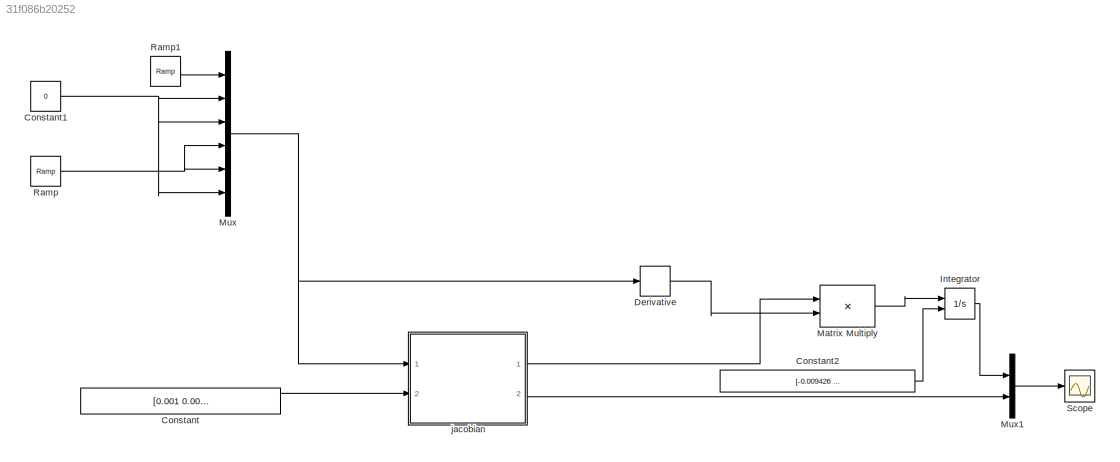
MODEL slx_31f086b20252
KIND model
CONFIG AbsTol = auto
CONFIG EnableMultiTasking = off
CONFIG FixedStep = 0.05
CONFIG MaxStep = auto
CONFIG MinStep = auto
CONFIG RelTol = 1e-3
CONFIG SampleTimeConstraint = Unconstrained
CONFIG Solver = FixedStepAuto
CONFIG SolverName = FixedStepAuto
CONFIG StartTime = 0.0
CONFIG StopTime = 10
BLOCK [Constant] Constant
  Value = [0.001 0.001 0.001 pi/180 pi/180 pi/180]
BLOCK [Constant] Constant1
  Value = 0
BLOCK [Constant] Constant2
  Value = [-0.009426 -0.2116 0.1959]
BLOCK [Derivative] Derivative
BLOCK [Integrator] Integrator
  InitialConditionSource = external
  Ports = [2, 1]
BLOCK [Product] Matrix Multiply
  InputSameDT = off
  Multiplication = Matrix(*)
  OutDataTypeStr = Inherit: Inherit via internal rule
  Ports = [2, 1]
  RndMeth = Floor
  SaturateOnIntegerOverflow = off
BLOCK [Mux] Mux
  DisplayOption = bar
  Inputs = 6
  Ports = [6, 1]
BLOCK [Mux] Mux1
  DisplayOption = bar
  Inputs = 2
  Ports = [2, 1]
BLOCK [Reference] Ramp  REF=simulink/Sources/Ramp
  Ports = [0, 1]
  SourceBlock = simulink/Sources/Ramp
  SourceProductBaseCode = SL
  SourceProductName = Simulink
  SourceType = Ramp
BLOCK [Reference] Ramp1  REF=simulink/Sources/Ramp
  Ports = [0, 1]
  SourceBlock = simulink/Sources/Ramp
  SourceProductBaseCode = SL
  SourceProductName = Simulink
  SourceType = Ramp
BLOCK [Scope] Scope
  NumInputPorts = 1
  Ports = [1]
  ScopeSpecificationString = Simulink.scopes.TimeScopeBlockCfg('CurrentConfiguration', extmgr.ConfigurationSet(extmgr.Configuration('Core','General UI',true),extmgr.Configuration('Core','Source UI',true),extmgr.Configuration('Sources','WiredSimulink',true),extmgr.Configuration('Visuals','Time Domain',true,'SerializedDisplays',{struct('MinYLimReal','-0.30844','MaxYLimReal','0.30122','YLabelReal','','MinYLimMag','0.00000','MaxY...<+1473ch>
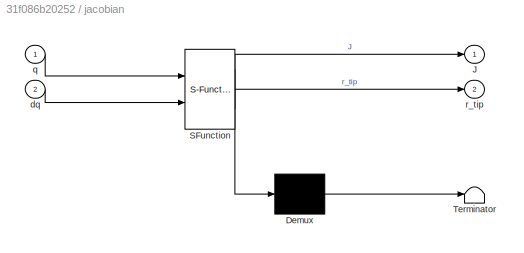
BLOCK [SubSystem] jacobian
  ErrorFcn = Stateflow.Translate.translate
  PermitHierarchicalResolution = ExplicitOnly
  Ports = [2, 2]
  RequestExecContextInheritance = off
  SFBlockType = MATLAB Function
  TreatAsAtomicUnit = on
  Variant = off
BLOCK [Demux] jacobian/ Demux 
  Outputs = 1
  Ports = [1, 1]
BLOCK [S-Function] jacobian/ SFunction 
  EnableBusSupport = on
  FunctionName = sf_sfun
  PortCounts = [2 3]
  Ports = [2, 3]
  SFcnIsStateOwnerBlock = off
  SFunctionDeploymentMode = off
  Tag = Stateflow S-Function CTR 1
BLOCK [Terminator] jacobian/ Terminator 
BLOCK [Outport] jacobian/J
  IconDisplay = Port number
BLOCK [Inport] jacobian/dq
  IconDisplay = Port number
  Port = 2
BLOCK [Inport] jacobian/q
  IconDisplay = Port number
BLOCK [Outport] jacobian/r_tip
  IconDisplay = Port number
  Port = 2
NET Constant1:1 -> Mux:2, Mux:3, Mux:6
LINE Constant2:1 -> Integrator:2
LINE Constant:1 -> jacobian:2
LINE Derivative:1 -> Matrix Multiply:2
LINE Integrator:1 -> Mux1:1
LINE Matrix Multiply:1 -> Integrator:1
LINE Mux1:1 -> Scope:1
NET Mux:1 -> Derivative:1, jacobian:1
LINE Ramp1:1 -> Mux:1
NET Ramp:1 -> Mux:4, Mux:5
LINE jacobian:1 -> Matrix Multiply:1
LINE jacobian:2 -> Mux1:2
note: NET lines group one-source signal fan-out (src -> all destinations, sorted); 1:1 wires keep LINE
CHART jacobian states=1 transitions=1
  STATE_LABEL 'eML_blk_kernel()'
  STATE_LABEL 'SCRIPT:\n% this is a code for modelling of concentric tube robot in free space based on " Design\n% and Control of Concentric-Tube Robots " by Dupont\n\nfunction [J, r_tip] = jacobian(q,dq)\n\nJ=zeros(3,6);\nr_tip=moving_CTR(q);\n\nfor i=1:6\nQ=q;\nQ(i)=Q(i)+dq(i);\nJ(:,i)= (moving_CTR(Q)- r_tip)/dq(i);\nend\n\nend\n%% Initializing parameters \nfunction r_tip  = moving_CTR(q)\n% q1 o q3 are robot base movments, q3 ...<+3608ch>'
